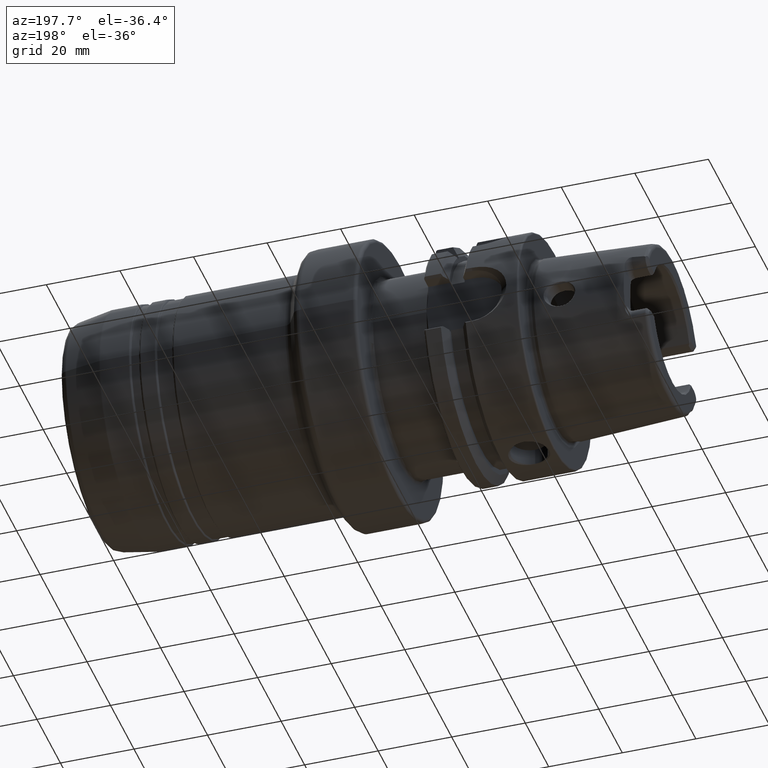
[diagram: clean part render]
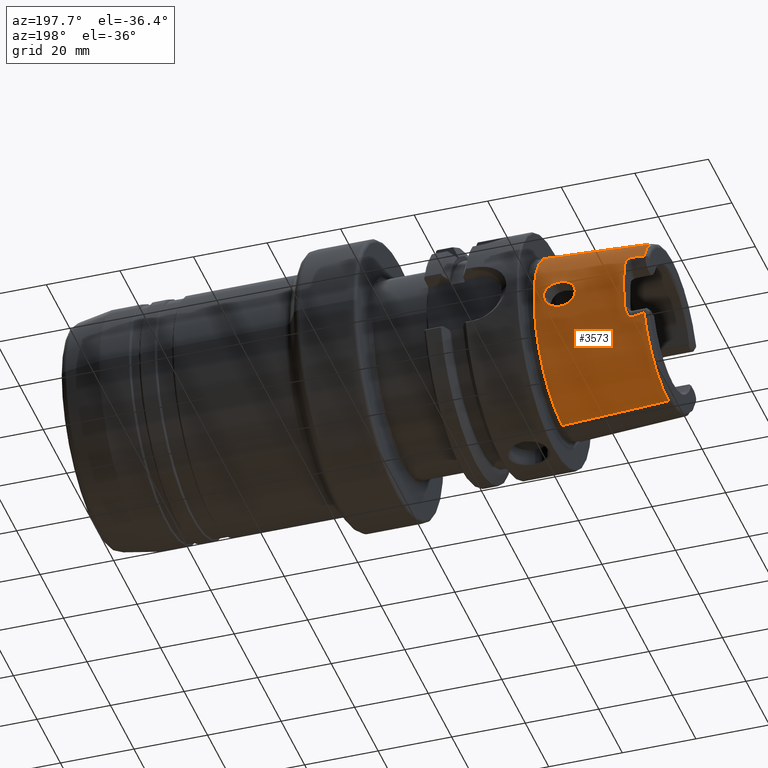
[diagram: same view with one face highlighted and labeled with its STEP entity id]
A machine part, auxiliary view. The second image highlights one B-rep face of the part: STEP entity #3573.
In plain terms, the highlighted conical surface has half-angle 2.868 deg.
Its self-contained STEP definition (entity closure, byte-faithful):
#2=CARTESIAN_POINT('',(-1.214962335933E0,0.E0,0.E0));
#3=DIRECTION('',(-1.E0,0.E0,0.E0));
#4=DIRECTION('',(0.E0,9.163649919573E-1,-4.003438540993E-1));
#5=AXIS2_PLACEMENT_3D('',#2,#3,#4);
#7=CARTESIAN_POINT('',(-7.874326638371E-2,0.E0,0.E0));
#8=DIRECTION('',(-1.E0,0.E0,0.E0));
#9=DIRECTION('',(0.E0,0.E0,1.E0));
#10=AXIS2_PLACEMENT_3D('',#7,#8,#9);
#12=CARTESIAN_POINT('',(-1.214962335933E0,0.E0,0.E0));
#13=DIRECTION('',(-1.E0,0.E0,0.E0));
#14=DIRECTION('',(0.E0,0.E0,1.E0));
#15=AXIS2_PLACEMENT_3D('',#12,#13,#14);
#17=CARTESIAN_POINT('',(-1.214962335933E0,8.216463940023E-1,3.589629535925E-1));
#18=CARTESIAN_POINT('',(-1.202137723520E0,8.216639653228E-1,3.605276004912E-1));
#19=CARTESIAN_POINT('',(-1.177407684652E0,8.216344615646E-1,3.636728149463E-1));
#20=CARTESIAN_POINT('',(-1.143154063882E0,8.213907522023E-1,3.684365793121E-1));
#21=CARTESIAN_POINT('',(-1.111500122064E0,8.209350689024E-1,3.732991764527E-1));
#22=CARTESIAN_POINT('',(-1.092007231354E0,8.204717269718E-1,3.766570196267E-1));
#23=CARTESIAN_POINT('',(-1.082677165354E0,8.201929111471E-1,3.783772381900E-1));
#25=CARTESIAN_POINT('',(-1.214962335933E0,8.216463940023E-1,
-3.589629535925E-1));
#26=CARTESIAN_POINT('',(-1.202137723520E0,8.216639653228E-1,
-3.605276004912E-1));
#27=CARTESIAN_POINT('',(-1.177407684652E0,8.216344615646E-1,
-3.636728149463E-1));
#28=CARTESIAN_POINT('',(-1.143154063882E0,8.213907522023E-1,
-3.684365793122E-1));
#29=CARTESIAN_POINT('',(-1.111500122063E0,8.209350689024E-1,
-3.732991764527E-1));
#30=CARTESIAN_POINT('',(-1.092007231354E0,8.204717269718E-1,
-3.766570196267E-1));
#31=CARTESIAN_POINT('',(-1.082677165354E0,8.201929111471E-1,
-3.783772381900E-1));
#33=CARTESIAN_POINT('',(-5.135587364269E-1,9.317761270647E-1,0.E0));
#34=CARTESIAN_POINT('',(-5.135587364269E-1,9.317761270647E-1,
-1.059444452188E-2));
#35=CARTESIAN_POINT('',(-5.112597052915E-1,9.315338257443E-1,
-3.114181466205E-2));
#36=CARTESIAN_POINT('',(-5.014470522860E-1,9.305604535621E-1,
-6.048739951771E-2));
#37=CARTESIAN_POINT('',(-4.859473398358E-1,9.292047173046E-1,
-8.702272828687E-2));
#38=CARTESIAN_POINT('',(-4.652534086689E-1,9.277410228939E-1,
-1.103260432304E-1));
#39=CARTESIAN_POINT('',(-4.399343063564E-1,9.264965720588E-1,
-1.295815820201E-1));
#40=CARTESIAN_POINT('',(-4.112508109157E-1,9.258207256304E-1,
-1.438139631638E-1));
#41=CARTESIAN_POINT('',(-3.805744316710E-1,9.259628364122E-1,
-1.525413198110E-1));
#42=CARTESIAN_POINT('',(-3.491300482257E-1,9.270293295367E-1,
-1.556952009316E-1));
#43=CARTESIAN_POINT('',(-3.175277998099E-1,9.290348030975E-1,
-1.533200893499E-1));
#44=CARTESIAN_POINT('',(-2.866288199643E-1,9.318865010712E-1,
-1.454333333278E-1));
#45=CARTESIAN_POINT('',(-2.568102767866E-1,9.354727822779E-1,
-1.316285605697E-1));
#46=CARTESIAN_POINT('',(-2.307133790197E-1,9.392755291863E-1,
-1.128189098473E-1));
#47=CARTESIAN_POINT('',(-2.090756611950E-1,9.428803181948E-1,
-8.972578975874E-2));
#48=CARTESIAN_POINT('',(-1.926659984561E-1,9.458837318081E-1,
-6.324011733582E-2));
#49=CARTESIAN_POINT('',(-1.818249999109E-1,9.479940993873E-1,
-3.305526295405E-2));
#50=CARTESIAN_POINT('',(-1.791683784831E-1,9.485287041170E-1,
-1.132568648947E-2));
#51=CARTESIAN_POINT('',(-1.791683784831E-1,9.485287041170E-1,0.E0));
#53=CARTESIAN_POINT('',(-1.791683784831E-1,9.485287041170E-1,0.E0));
#54=CARTESIAN_POINT('',(-1.791683784831E-1,9.485287041170E-1,
1.125393156092E-2));
#55=CARTESIAN_POINT('',(-1.817938965527E-1,9.480004279794E-1,
3.286506563893E-2));
#56=CARTESIAN_POINT('',(-1.925167139127E-1,9.459123193772E-1,
6.291328007326E-2));
#57=CARTESIAN_POINT('',(-2.088312421430E-1,9.429234192839E-1,
8.940721633452E-2));
#58=CARTESIAN_POINT('',(-2.304380063324E-1,9.393183003810E-1,
1.125854905139E-1));
#59=CARTESIAN_POINT('',(-2.566028044485E-1,9.354997705104E-1,
1.315154173367E-1));
#60=CARTESIAN_POINT('',(-2.864670183772E-1,9.319034963393E-1,
1.453777911108E-1));
#61=CARTESIAN_POINT('',(-3.173741363603E-1,9.290467043507E-1,
1.532956042085E-1));
#62=CARTESIAN_POINT('',(-3.489901207594E-1,9.270360614975E-1,
1.556974112705E-1));
#63=CARTESIAN_POINT('',(-3.804412569754E-1,9.259652844026E-1,
1.525672724497E-1));
#64=CARTESIAN_POINT('',(-4.111359782159E-1,9.258195955679E-1,
1.438580890741E-1));
#65=CARTESIAN_POINT('',(-4.398122717152E-1,9.264922531515E-1,
1.296552079440E-1));
#66=CARTESIAN_POINT('',(-4.651284366432E-1,9.277335790677E-1,
1.104383199464E-1));
#67=CARTESIAN_POINT('',(-4.858294077307E-1,9.291952802441E-1,
8.718376756846E-2));
#68=CARTESIAN_POINT('',(-5.013786107220E-1,9.305538653369E-1,
6.064605492795E-2));
#69=CARTESIAN_POINT('',(-5.112424733790E-1,9.315319984649E-1,
3.124649715283E-2));
#70=CARTESIAN_POINT('',(-5.135587364269E-1,9.317761270647E-1,
1.063446270722E-2));
#71=CARTESIAN_POINT('',(-5.135587364269E-1,9.317761270647E-1,0.E0));
#1329=DIRECTION('',(-9.987474310439E-1,-1.043894675169E-10,-5.003567710383E-2));
#1330=VECTOR('',#1329,1.137647135239E0);
#1331=CARTESIAN_POINT('',(-7.874018217920E-2,1.186287369443E-10,
9.535595482687E-1));
#1332=LINE('',#1331,#1330);
#1338=DIRECTION('',(-9.987474310439E-1,1.043905282618E-10,5.003567710383E-2));
#1339=VECTOR('',#1338,1.137647135239E0);
#1340=CARTESIAN_POINT('',(-7.874018217920E-2,-1.186287973355E-10,
-9.535595482687E-1));
#1341=LINE('',#1340,#1339);
#1541=CARTESIAN_POINT('',(-1.082677165354E0,8.201929111471E-1,
-3.783772381900E-1));
#1542=CARTESIAN_POINT('',(-1.080309829068E0,8.201221666509E-1,
-3.788137126829E-1));
#1543=CARTESIAN_POINT('',(-1.075594075364E0,8.204210102496E-1,
-3.787309924892E-1));
#1544=CARTESIAN_POINT('',(-1.068447470776E0,8.222354159038E-1,
-3.756470066564E-1));
#1545=CARTESIAN_POINT('',(-1.061738070197E0,8.249516507251E-1,
-3.704741763439E-1));
#1546=CARTESIAN_POINT('',(-1.055444552167E0,8.281651463979E-1,
-3.640261670956E-1));
#1547=CARTESIAN_POINT('',(-1.049345846034E0,8.318078643387E-1,
-3.564100526824E-1));
#1548=CARTESIAN_POINT('',(-1.043455920428E0,8.358237463313E-1,
-3.476666565947E-1));
#1549=CARTESIAN_POINT('',(-1.037919085595E0,8.401294406465E-1,
-3.378858227048E-1));
#1550=CARTESIAN_POINT('',(-1.032740774694E0,8.448266636937E-1,
-3.267036775167E-1));
#1551=CARTESIAN_POINT('',(-1.028158698021E0,8.499727965999E-1,
-3.137638462499E-1));
#1552=CARTESIAN_POINT('',(-1.024670355310E0,8.555628502604E-1,
-2.987534840124E-1));
#1553=CARTESIAN_POINT('',(-1.023622047244E0,8.595096227887E-1,
-2.872696979579E-1));
#1554=CARTESIAN_POINT('',(-1.023622047244E0,8.615055747168E-1,
-2.811537426929E-1));
#1570=CARTESIAN_POINT('',(-1.023622047244E0,0.E0,0.E0));
#1571=DIRECTION('',(1.E0,0.E0,0.E0));
#1572=DIRECTION('',(0.E0,9.506556522061E-1,-3.102480151887E-1));
#1573=AXIS2_PLACEMENT_3D('',#1570,#1571,#1572);
#1599=CARTESIAN_POINT('',(-1.023622047244E0,8.615055747168E-1,
2.811537426929E-1));
#1600=CARTESIAN_POINT('',(-1.023622047244E0,8.598291848240E-1,
2.862905024749E-1));
#1601=CARTESIAN_POINT('',(-1.024361652978E0,8.564729743239E-1,
2.961457944053E-1));
#1602=CARTESIAN_POINT('',(-1.027113978821E0,8.514681903447E-1,
3.098196015217E-1));
#1603=CARTESIAN_POINT('',(-1.030960475755E0,8.467084796506E-1,
3.220390391123E-1));
#1604=CARTESIAN_POINT('',(-1.035518124532E0,8.422242132077E-1,
3.329555717421E-1));
#1605=CARTESIAN_POINT('',(-1.040527922392E0,8.380397156604E-1,
3.426771762161E-1));
#1606=CARTESIAN_POINT('',(-1.045823871878E0,8.341589953559E-1,
3.513262520907E-1));
#1607=CARTESIAN_POINT('',(-1.051348273903E0,8.305689569780E-1,
3.590265647447E-1));
#1608=CARTESIAN_POINT('',(-1.057063724649E0,8.272918188686E-1,
3.658012265087E-1));
#1609=CARTESIAN_POINT('',(-1.063155631619E0,8.243273323755E-1,
3.716845558941E-1));
#1610=CARTESIAN_POINT('',(-1.069347462317E0,8.219682004198E-1,
3.761200819397E-1));
#1611=CARTESIAN_POINT('',(-1.076021270772E0,8.203819932679E-1,
3.787641864703E-1));
#1612=CARTESIAN_POINT('',(-1.080447741821E0,8.201262879784E-1,
3.787882852015E-1));
#1613=CARTESIAN_POINT('',(-1.082677165354E0,8.201929111471E-1,
3.783772381900E-1));
#3009=CARTESIAN_POINT('',(-7.874326638371E-2,0.E0,-9.535598881463E-1));
#3010=CARTESIAN_POINT('',(-7.874326638371E-2,0.E0,9.535598881463E-1));
#3011=VERTEX_POINT('',#3009);
#3012=VERTEX_POINT('',#3010);
#3144=CARTESIAN_POINT('',(-1.023622047244E0,8.615055747168E-1,
-2.811537426929E-1));
#3146=VERTEX_POINT('',#3144);
#3148=CARTESIAN_POINT('',(-1.082677165354E0,8.201929111471E-1,
-3.783772381900E-1));
#3150=VERTEX_POINT('',#3148);
#3152=CARTESIAN_POINT('',(-1.082677165354E0,8.201929111471E-1,
3.783772381900E-1));
#3154=VERTEX_POINT('',#3152);
#3156=CARTESIAN_POINT('',(-1.023622047244E0,8.615055747168E-1,
2.811537426929E-1));
#3158=VERTEX_POINT('',#3156);
#3170=CARTESIAN_POINT('',(-1.214962335933E0,0.E0,-8.966366035518E-1));
#3172=VERTEX_POINT('',#3170);
#3174=CARTESIAN_POINT('',(-1.214962335933E0,8.216463940023E-1,
-3.589629535925E-1));
#3175=VERTEX_POINT('',#3174);
#3176=CARTESIAN_POINT('',(-1.214962335933E0,0.E0,8.966366035518E-1));
#3177=CARTESIAN_POINT('',(-1.214962335933E0,8.216463940023E-1,
3.589629535925E-1));
#3178=VERTEX_POINT('',#3176);
#3179=VERTEX_POINT('',#3177);
#3242=VERTEX_POINT('',#33);
#3243=VERTEX_POINT('',#51);
#3540=CARTESIAN_POINT('',(-6.468512714133E-1,0.E0,0.E0));
#3541=DIRECTION('',(1.E0,0.E0,0.E0));
#3542=DIRECTION('',(0.E0,0.E0,1.E0));
#3543=AXIS2_PLACEMENT_3D('',#3540,#3541,#3542);
#3544=CONICAL_SURFACE('',#3543,9.250983224875E-1,2.86805556E0);
#3546=ORIENTED_EDGE('',*,*,#3545,.T.);
#3548=ORIENTED_EDGE('',*,*,#3547,.F.);
#3550=ORIENTED_EDGE('',*,*,#3549,.F.);
#3552=ORIENTED_EDGE('',*,*,#3551,.T.);
#3554=ORIENTED_EDGE('',*,*,#3553,.T.);
#3556=ORIENTED_EDGE('',*,*,#3555,.T.);
#3558=ORIENTED_EDGE('',*,*,#3557,.F.);
#3560=ORIENTED_EDGE('',*,*,#3559,.F.);
#3562=ORIENTED_EDGE('',*,*,#3561,.F.);
#3564=ORIENTED_EDGE('',*,*,#3563,.F.);
#3565=EDGE_LOOP('',(#3546,#3548,#3550,#3552,#3554,#3556,#3558,#3560,#3562,
#3564));
#3566=FACE_OUTER_BOUND('',#3565,.F.);
#3568=ORIENTED_EDGE('',*,*,#3567,.F.);
#3570=ORIENTED_EDGE('',*,*,#3569,.F.);
#3571=EDGE_LOOP('',(#3568,#3570));
#3572=FACE_BOUND('',#3571,.F.);
#3573=ADVANCED_FACE('',(#3566,#3572),#3544,.T.);
#6=CIRCLE('',#5,8.966366035518E-1);
#11=CIRCLE('',#10,9.535598881463E-1);
#16=CIRCLE('',#15,8.966366035518E-1);
#24=B_SPLINE_CURVE_WITH_KNOTS('',3,(#17,#18,#19,#20,#21,#22,#23),.UNSPECIFIED.,
.F.,.F.,(4,1,1,1,4),(0.E0,2.5E-1,5.E-1,7.5E-1,1.E0),.UNSPECIFIED.);
#32=B_SPLINE_CURVE_WITH_KNOTS('',3,(#25,#26,#27,#28,#29,#30,#31),.UNSPECIFIED.,
.F.,.F.,(4,1,1,1,4),(0.E0,2.5E-1,5.E-1,7.5E-1,1.E0),.UNSPECIFIED.);
#52=B_SPLINE_CURVE_WITH_KNOTS('',3,(#33,#34,#35,#36,#37,#38,#39,#40,#41,#42,#43,
#44,#45,#46,#47,#48,#49,#50,#51),.UNSPECIFIED.,.F.,.F.,(4,1,1,1,1,1,1,1,1,1,1,1,
1,1,1,1,4),(0.E0,6.25E-2,1.25E-1,1.875E-1,2.5E-1,3.125E-1,3.75E-1,4.375E-1,
5.E-1,5.625E-1,6.25E-1,6.875E-1,7.5E-1,8.125E-1,8.75E-1,9.375E-1,1.E0),
.UNSPECIFIED.);
#72=B_SPLINE_CURVE_WITH_KNOTS('',3,(#53,#54,#55,#56,#57,#58,#59,#60,#61,#62,#63,
#64,#65,#66,#67,#68,#69,#70,#71),.UNSPECIFIED.,.F.,.F.,(4,1,1,1,1,1,1,1,1,1,1,1,
1,1,1,1,4),(0.E0,6.25E-2,1.25E-1,1.875E-1,2.5E-1,3.125E-1,3.75E-1,4.375E-1,
5.E-1,5.625E-1,6.25E-1,6.875E-1,7.5E-1,8.125E-1,8.75E-1,9.375E-1,1.E0),
.UNSPECIFIED.);
#1555=B_SPLINE_CURVE_WITH_KNOTS('',3,(#1541,#1542,#1543,#1544,#1545,#1546,#1547,
#1548,#1549,#1550,#1551,#1552,#1553,#1554),.UNSPECIFIED.,.F.,.F.,(4,1,1,1,1,1,1,
1,1,1,1,4),(0.E0,9.090909090909E-2,1.818181818182E-1,2.727272727273E-1,
3.636363636364E-1,4.545454545455E-1,5.454545454545E-1,6.363636363636E-1,
7.272727272727E-1,8.181818181818E-1,9.090909090909E-1,1.E0),.UNSPECIFIED.);
#1574=CIRCLE('',#1573,9.062225346450E-1);
#1614=B_SPLINE_CURVE_WITH_KNOTS('',3,(#1599,#1600,#1601,#1602,#1603,#1604,#1605,
#1606,#1607,#1608,#1609,#1610,#1611,#1612,#1613),.UNSPECIFIED.,.F.,.F.,(4,1,1,1,
1,1,1,1,1,1,1,1,4),(0.E0,8.333333333333E-2,1.666666666667E-1,2.5E-1,
3.333333333333E-1,4.166666666667E-1,5.E-1,5.833333333333E-1,6.666666666667E-1,
7.5E-1,8.333333333333E-1,9.166666666667E-1,1.E0),.UNSPECIFIED.);
#3545=EDGE_CURVE('',#3175,#3172,#6,.T.);
#3547=EDGE_CURVE('',#3011,#3172,#1341,.T.);
#3549=EDGE_CURVE('',#3012,#3011,#11,.T.);
#3551=EDGE_CURVE('',#3012,#3178,#1332,.T.);
#3553=EDGE_CURVE('',#3178,#3179,#16,.T.);
#3555=EDGE_CURVE('',#3179,#3154,#24,.T.);
#3557=EDGE_CURVE('',#3158,#3154,#1614,.T.);
#3559=EDGE_CURVE('',#3146,#3158,#1574,.T.);
#3561=EDGE_CURVE('',#3150,#3146,#1555,.T.);
#3563=EDGE_CURVE('',#3175,#3150,#32,.T.);
#3567=EDGE_CURVE('',#3242,#3243,#52,.T.);
#3569=EDGE_CURVE('',#3243,#3242,#72,.T.);